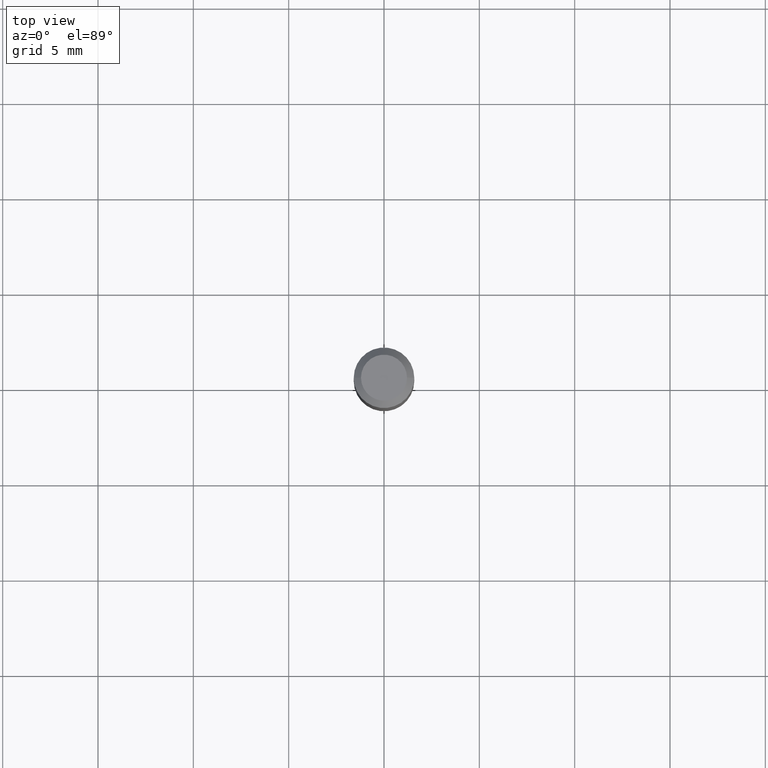
[diagram: clean part render]
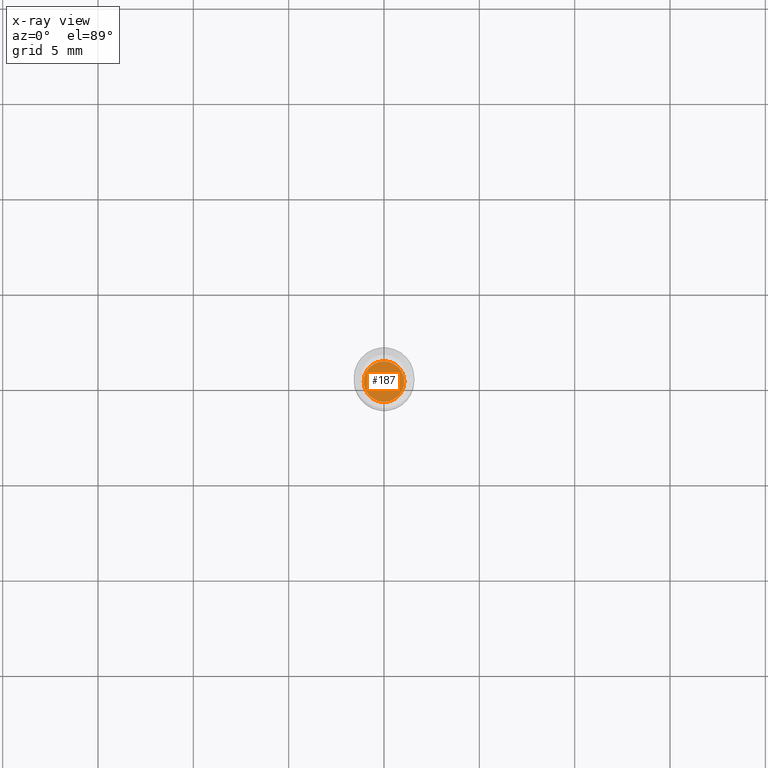
[diagram: x-ray — body ghosted, one internal face saturated and labeled with its STEP entity id]
A machine part, top view, then the same camera in x-ray: the body is ghosted and one INTERNAL B-rep face — a face not visible from any outside direction — is saturated and labeled: STEP entity #187.
In plain terms, the highlighted planar face has unit normal (-0, 0, 1).
Its self-contained STEP definition (entity closure, byte-faithful):
#38 = DIRECTION ( 'NONE',  ( 1.000000000000000000, -6.982962677686265922E-15, 4.876176775795935793E-29 ) ) ;
#65 = DIRECTION ( 'NONE',  ( 1.000000000000000000, -6.982962677686269866E-15, 0.000000000000000000 ) ) ;
#83 = FACE_OUTER_BOUND ( 'NONE', #95, .T. ) ;
#95 = EDGE_LOOP ( 'NONE', ( #395, #288 ) ) ;
#97 = DIRECTION ( 'NONE',  ( -2.445468806185136597E-29, 3.491481338843145583E-15, 1.000000000000000000 ) ) ;
#100 = CIRCLE ( 'NONE', #363, 0.04199999999999999567 ) ;
#129 = AXIS2_PLACEMENT_3D ( 'NONE', #232, #373, #38 ) ;
#133 = CARTESIAN_POINT ( 'NONE',  ( 1.173825026968865628E-29, -1.675911042644709888E-15, -0.4799999999999999822 ) ) ;
#144 = AXIS2_PLACEMENT_3D ( 'NONE', #133, #97, #344 ) ;
#183 = VERTEX_POINT ( 'NONE', #406 ) ;
#187 = ADVANCED_FACE ( 'NONE', ( #83 ), #230, .F. ) ;
#188 = CARTESIAN_POINT ( 'NONE',  ( 1.173825026968865628E-29, -1.675911042644709888E-15, -0.4799999999999999822 ) ) ;
#196 = VERTEX_POINT ( 'NONE', #197 ) ;
#197 = CARTESIAN_POINT ( 'NONE',  ( -0.04199999999999999567, -1.374833866451356541E-15, -0.4799999999999999822 ) ) ;
#229 = EDGE_CURVE ( 'NONE', #196, #183, #100, .T. ) ;
#230 = PLANE ( 'NONE',  #129 ) ;
#232 = CARTESIAN_POINT ( 'NONE',  ( 1.173825026968865768E-29, -1.675911042644710085E-15, -0.4800000000000000933 ) ) ;
#239 = EDGE_CURVE ( 'NONE', #183, #196, #424, .T. ) ;
#288 = ORIENTED_EDGE ( 'NONE', *, *, #229, .F. ) ;
#344 = DIRECTION ( 'NONE',  ( 1.000000000000000000, -6.982962677686269866E-15, 0.000000000000000000 ) ) ;
#363 = AXIS2_PLACEMENT_3D ( 'NONE', #188, #389, #65 ) ;
#373 = DIRECTION ( 'NONE',  ( -2.438088387897960049E-29, 3.491481338843145188E-15, 1.000000000000000000 ) ) ;
#389 = DIRECTION ( 'NONE',  ( -2.445468806185136597E-29, 3.491481338843145583E-15, 1.000000000000000000 ) ) ;
#395 = ORIENTED_EDGE ( 'NONE', *, *, #239, .F. ) ;
#406 = CARTESIAN_POINT ( 'NONE',  ( 0.04199999999999999567, -1.969195475107533334E-15, -0.4799999999999999822 ) ) ;
#424 = CIRCLE ( 'NONE', #144, 0.04199999999999999567 ) ;